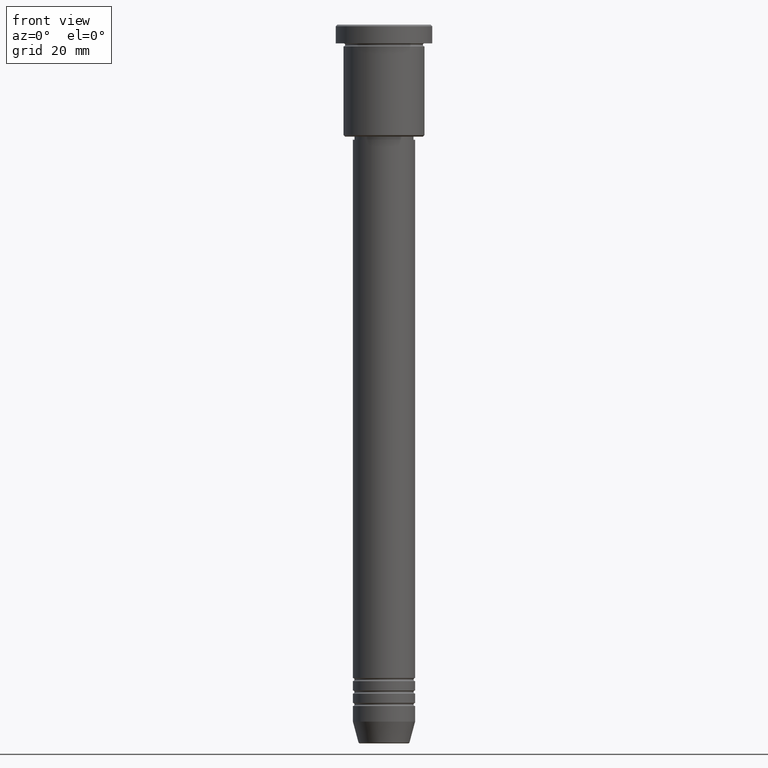
[diagram: clean part render]
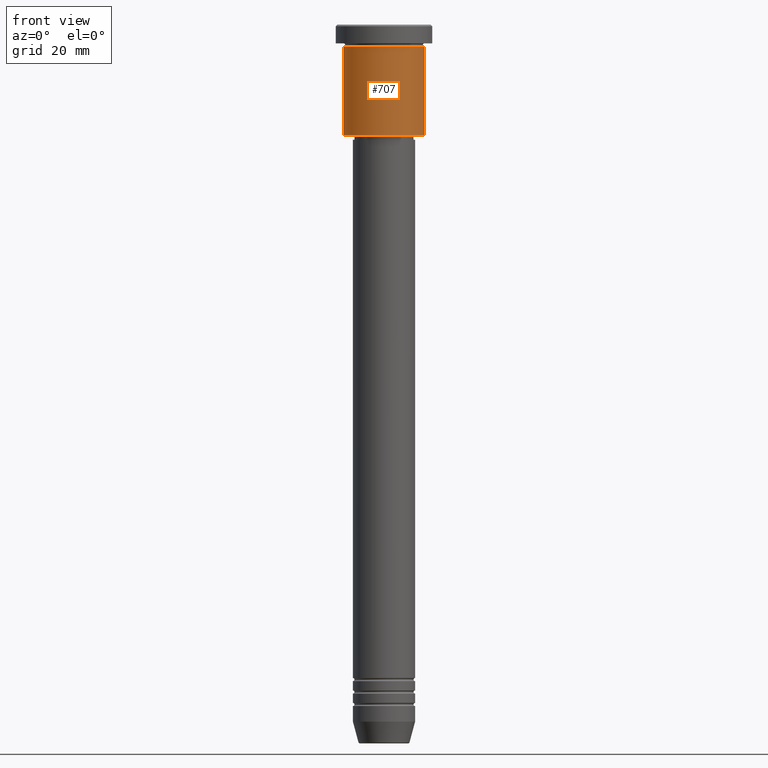
[diagram: same view with one face highlighted and labeled with its STEP entity id]
A machine part, front view. The second image highlights one B-rep face of the part: STEP entity #707.
In plain terms, the highlighted cylindrical surface (partial cylindrical patch) has radius 13 mm, axis along (-0, -0, 1).
Its self-contained STEP definition (entity closure, byte-faithful):
#16 = DIRECTION ( 'NONE',  ( -0.000000000000000000, -0.000000000000000000, 1.000000000000000000 ) ) ;
#46 = CIRCLE ( 'NONE', #1135, 13.00000000000000178 ) ;
#69 = CARTESIAN_POINT ( 'NONE',  ( -13.00000000000000178, 1.592040838891559293E-15, 0.000000000000000000 ) ) ;
#77 = LINE ( 'NONE', #985, #497 ) ;
#88 = VERTEX_POINT ( 'NONE', #458 ) ;
#146 = VERTEX_POINT ( 'NONE', #275 ) ;
#202 = FACE_OUTER_BOUND ( 'NONE', #288, .T. ) ;
#250 = DIRECTION ( 'NONE',  ( -0.000000000000000000, -0.000000000000000000, 1.000000000000000000 ) ) ;
#275 = CARTESIAN_POINT ( 'NONE',  ( -13.00000000000000178, 1.592040838891559293E-15, -6.999999999999995559 ) ) ;
#288 = EDGE_LOOP ( 'NONE', ( #652, #1110, #779, #351 ) ) ;
#307 = CIRCLE ( 'NONE', #380, 13.00000000000000178 ) ;
#351 = ORIENTED_EDGE ( 'NONE', *, *, #1178, .F. ) ;
#375 = LINE ( 'NONE', #69, #1059 ) ;
#380 = AXIS2_PLACEMENT_3D ( 'NONE', #658, #16, #664 ) ;
#403 = VERTEX_POINT ( 'NONE', #501 ) ;
#443 = DIRECTION ( 'NONE',  ( -0.000000000000000000, -0.000000000000000000, 1.000000000000000000 ) ) ;
#458 = CARTESIAN_POINT ( 'NONE',  ( 13.00000000000000178, 0.000000000000000000, -35.50000000000005684 ) ) ;
#491 = DIRECTION ( 'NONE',  ( -0.000000000000000000, -0.000000000000000000, 1.000000000000000000 ) ) ;
#497 = VECTOR ( 'NONE', #657, 1000.000000000000000 ) ;
#501 = CARTESIAN_POINT ( 'NONE',  ( -13.00000000000000178, 1.592040838891559293E-15, -35.50000000000005684 ) ) ;
#517 = EDGE_CURVE ( 'NONE', #403, #146, #375, .T. ) ;
#524 = EDGE_CURVE ( 'NONE', #403, #88, #46, .T. ) ;
#585 = CARTESIAN_POINT ( 'NONE',  ( 0.000000000000000000, 0.000000000000000000, 0.000000000000000000 ) ) ;
#652 = ORIENTED_EDGE ( 'NONE', *, *, #517, .F. ) ;
#657 = DIRECTION ( 'NONE',  ( -0.000000000000000000, -0.000000000000000000, 1.000000000000000000 ) ) ;
#658 = CARTESIAN_POINT ( 'NONE',  ( 0.000000000000000000, 0.000000000000000000, -6.999999999999995559 ) ) ;
#664 = DIRECTION ( 'NONE',  ( 1.000000000000000000, 0.000000000000000000, 0.000000000000000000 ) ) ;
#707 = ADVANCED_FACE ( 'NONE', ( #202 ), #753, .T. ) ;
#753 = CYLINDRICAL_SURFACE ( 'NONE', #945, 13.00000000000000178 ) ;
#779 = ORIENTED_EDGE ( 'NONE', *, *, #833, .T. ) ;
#782 = CARTESIAN_POINT ( 'NONE',  ( 13.00000000000000178, 0.000000000000000000, -6.999999999999995559 ) ) ;
#816 = DIRECTION ( 'NONE',  ( -1.000000000000000000, 0.000000000000000000, 0.000000000000000000 ) ) ;
#833 = EDGE_CURVE ( 'NONE', #88, #1013, #77, .T. ) ;
#906 = CARTESIAN_POINT ( 'NONE',  ( 0.000000000000000000, 0.000000000000000000, -35.50000000000005684 ) ) ;
#912 = DIRECTION ( 'NONE',  ( 1.000000000000000000, 0.000000000000000000, 0.000000000000000000 ) ) ;
#945 = AXIS2_PLACEMENT_3D ( 'NONE', #585, #491, #912 ) ;
#985 = CARTESIAN_POINT ( 'NONE',  ( 13.00000000000000178, 0.000000000000000000, 0.000000000000000000 ) ) ;
#1013 = VERTEX_POINT ( 'NONE', #782 ) ;
#1059 = VECTOR ( 'NONE', #250, 1000.000000000000000 ) ;
#1110 = ORIENTED_EDGE ( 'NONE', *, *, #524, .T. ) ;
#1135 = AXIS2_PLACEMENT_3D ( 'NONE', #906, #443, #816 ) ;
#1178 = EDGE_CURVE ( 'NONE', #146, #1013, #307, .T. ) ;